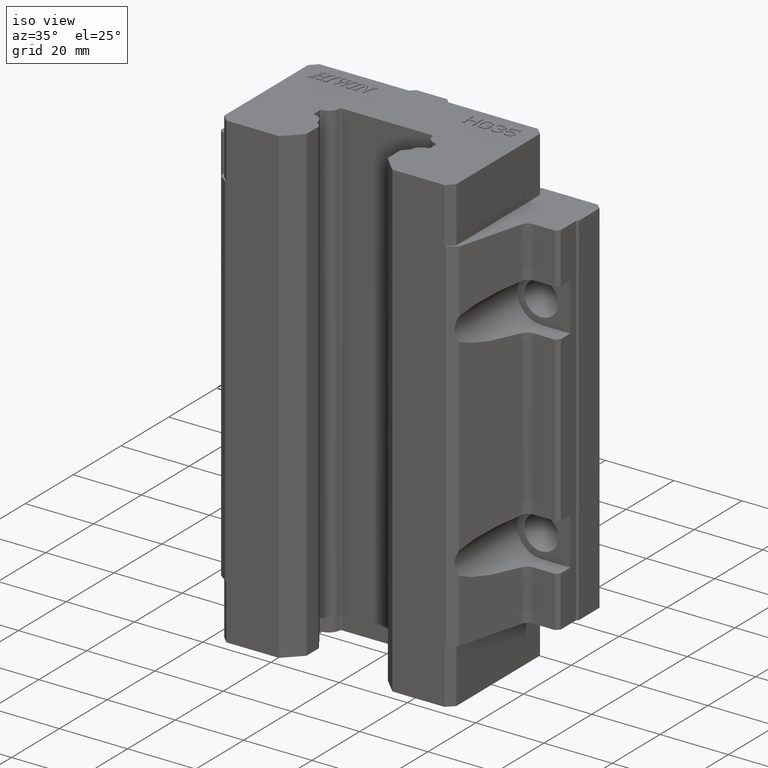
[diagram: clean part render]
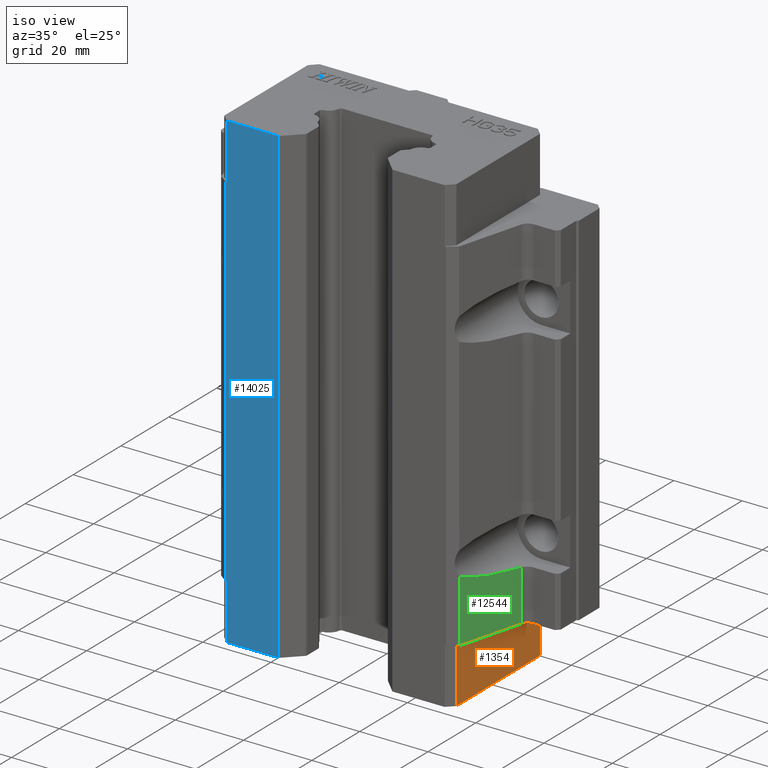
[diagram: same view with three faces highlighted in distinct colors, each labeled with its STEP entity id]
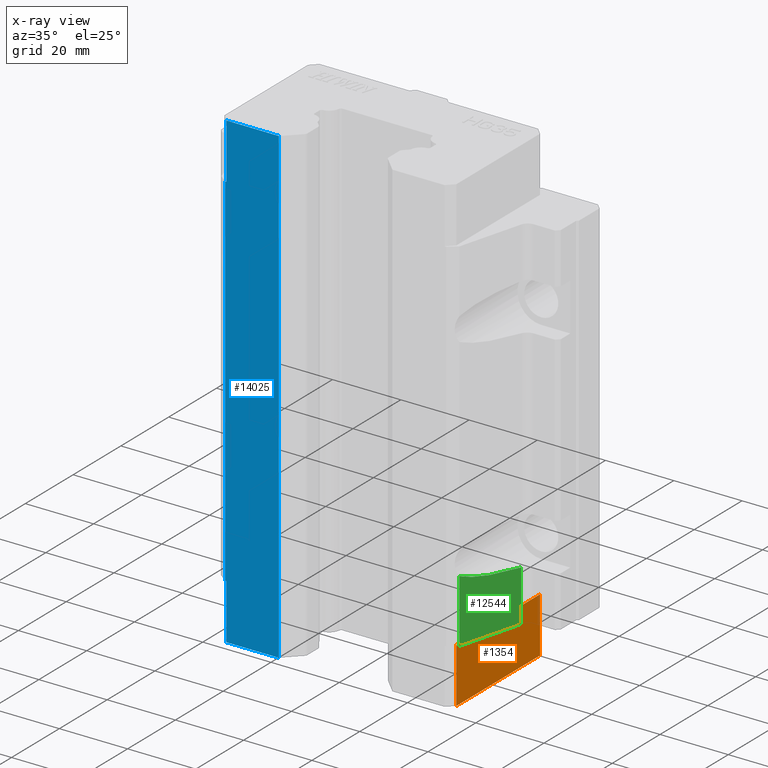
[diagram: x-ray of the same camera — body ghosted, the three highlighted faces saturated]
A machine part, iso view with three faces highlighted in distinct colors.
The next image is the same camera in x-ray (body ghosted, the three faces saturated) — at least one of them is partly hidden behind the body in this view.
Their STEP definitions:

[orange] entity #1354 — the highlighted planar face has unit normal (-1, 0, 0).
#696 = VERTEX_POINT ( 'NONE', #13085 ) ;
#711 = VERTEX_POINT ( 'NONE', #13162 ) ;
#720 = EDGE_CURVE ( 'NONE', #711, #696, #13128, .T. ) ;
#1345 = VERTEX_POINT ( 'NONE', #5882 ) ;
#1348 = VERTEX_POINT ( 'NONE', #5877 ) ;
#1350 = EDGE_LOOP ( 'NONE', ( #1359, #14055, #14050, #14041 ) ) ;
#1353 = EDGE_CURVE ( 'NONE', #1348, #711, #5874, .T. ) ;
#1354 = ADVANCED_FACE ( 'NONE', ( #5870 ), #5868, .F. ) ;
#1359 = ORIENTED_EDGE ( 'NONE', *, *, #1361, .T. ) ;
#1361 = EDGE_CURVE ( 'NONE', #1348, #1345, #5923, .T. ) ;
#3716 = LINE ( 'NONE', #3782, #3781 ) ;
#3780 = DIRECTION ( 'NONE',  ( 0.0000000000000000000, 0.0000000000000000000, 1.000000000000000000 ) ) ;
#3781 = VECTOR ( 'NONE', #3780, 1000.000000000000000 ) ;
#3782 = CARTESIAN_POINT ( 'NONE',  ( 33.95352013277000200, 15.54575714773000100, -52.90000000000000600 ) ) ;
#5864 = DIRECTION ( 'NONE',  ( 0.0000000000000000000, 0.0000000000000000000, 1.000000000000000000 ) ) ;
#5865 = DIRECTION ( 'NONE',  ( -1.000000000000000000, 0.0000000000000000000, 0.0000000000000000000 ) ) ;
#5866 = CARTESIAN_POINT ( 'NONE',  ( 33.95352013277000200, -19.45424285227000300, -52.90000000000000600 ) ) ;
#5867 = AXIS2_PLACEMENT_3D ( 'NONE', #5866, #5865, #5864 ) ;
#5868 = PLANE ( 'NONE',  #5867 ) ;
#5870 = FACE_OUTER_BOUND ( 'NONE', #1350, .T. ) ;
#5871 = DIRECTION ( 'NONE',  ( 0.0000000000000000000, 0.0000000000000000000, 1.000000000000000000 ) ) ;
#5872 = VECTOR ( 'NONE', #5871, 1000.000000000000000 ) ;
#5873 = CARTESIAN_POINT ( 'NONE',  ( 33.95352013277000200, -19.45424285227000300, -52.90000000000000600 ) ) ;
#5874 = LINE ( 'NONE', #5873, #5872 ) ;
#5877 = CARTESIAN_POINT ( 'NONE',  ( 33.95352013277000200, -19.45424285227000300, -69.09999999999999400 ) ) ;
#5882 = CARTESIAN_POINT ( 'NONE',  ( 33.95352013277000200, 15.54575714773000300, -69.09999999999999400 ) ) ;
#5920 = DIRECTION ( 'NONE',  ( 0.0000000000000000000, 1.000000000000000000, 0.0000000000000000000 ) ) ;
#5921 = VECTOR ( 'NONE', #5920, 1000.000000000000000 ) ;
#5922 = CARTESIAN_POINT ( 'NONE',  ( 33.95352013277000200, 0.0000000000000000000, -69.09999999999999400 ) ) ;
#5923 = LINE ( 'NONE', #5922, #5921 ) ;
#13085 = CARTESIAN_POINT ( 'NONE',  ( 33.95352013277000200, 15.54575714773000300, -52.90000000000000600 ) ) ;
#13125 = DIRECTION ( 'NONE',  ( 0.0000000000000000000, 1.000000000000000000, 0.0000000000000000000 ) ) ;
#13126 = VECTOR ( 'NONE', #13125, 1000.000000000000000 ) ;
#13127 = CARTESIAN_POINT ( 'NONE',  ( 33.95352013277000200, -19.45424285227000300, -52.90000000000000600 ) ) ;
#13128 = LINE ( 'NONE', #13127, #13126 ) ;
#13162 = CARTESIAN_POINT ( 'NONE',  ( 33.95352013277000200, -19.45424285227000300, -52.90000000000000600 ) ) ;
#14041 = ORIENTED_EDGE ( 'NONE', *, *, #1353, .F. ) ;
#14050 = ORIENTED_EDGE ( 'NONE', *, *, #720, .F. ) ;
#14055 = ORIENTED_EDGE ( 'NONE', *, *, #14056, .T. ) ;
#14056 = EDGE_CURVE ( 'NONE', #1345, #696, #3716, .T. ) ;

[blue] entity #14025 — the highlighted planar face has unit normal (0, -1, 0).
#726 = EDGE_CURVE ( 'NONE', #2308, #733, #13209, .T. ) ;
#733 = VERTEX_POINT ( 'NONE', #13181 ) ;
#2308 = VERTEX_POINT ( 'NONE', #6791 ) ;
#2333 = EDGE_CURVE ( 'NONE', #5430, #2308, #6783, .T. ) ;
#3619 = DIRECTION ( 'NONE',  ( 0.0000000000000000000, 0.0000000000000000000, -1.000000000000000000 ) ) ;
#3620 = VECTOR ( 'NONE', #3619, 1000.000000000000000 ) ;
#3621 = CARTESIAN_POINT ( 'NONE',  ( -32.00072271949999700, -21.50000000000000000, -52.90000000000000600 ) ) ;
#3622 = LINE ( 'NONE', #3621, #3620 ) ;
#3648 = CARTESIAN_POINT ( 'NONE',  ( -16.64140162820000100, -21.50000000000000000, -69.09999999999999400 ) ) ;
#3649 = CARTESIAN_POINT ( 'NONE',  ( -16.64140162820000400, -21.50000000000000000, 69.09999999999999400 ) ) ;
#3650 = DIRECTION ( 'NONE',  ( 1.000000000000000000, 0.0000000000000000000, 0.0000000000000000000 ) ) ;
#3651 = VECTOR ( 'NONE', #3650, 1000.000000000000000 ) ;
#3652 = CARTESIAN_POINT ( 'NONE',  ( 0.0000000000000000000, -21.50000000000000000, 69.09999999999999400 ) ) ;
#3653 = LINE ( 'NONE', #3652, #3651 ) ;
#3679 = CARTESIAN_POINT ( 'NONE',  ( -32.00072271949999700, -21.50000000000000000, -69.09999999999999400 ) ) ;
#3689 = DIRECTION ( 'NONE',  ( 1.000000000000000000, 0.0000000000000000000, 0.0000000000000000000 ) ) ;
#3690 = VECTOR ( 'NONE', #3689, 1000.000000000000000 ) ;
#3691 = CARTESIAN_POINT ( 'NONE',  ( 0.0000000000000000000, -21.50000000000000000, -69.09999999999999400 ) ) ;
#3692 = LINE ( 'NONE', #3691, #3690 ) ;
#3693 = DIRECTION ( 'NONE',  ( 0.0000000000000000000, 0.0000000000000000000, -1.000000000000000000 ) ) ;
#3694 = DIRECTION ( 'NONE',  ( 0.0000000000000000000, -1.000000000000000000, 0.0000000000000000000 ) ) ;
#3695 = CARTESIAN_POINT ( 'NONE',  ( -32.36602540155000400, -21.50000000000000000, -52.90000000000000600 ) ) ;
#3696 = AXIS2_PLACEMENT_3D ( 'NONE', #3695, #3694, #3693 ) ;
#3697 = PLANE ( 'NONE',  #3696 ) ;
#3699 = FACE_OUTER_BOUND ( 'NONE', #14029, .T. ) ;
#3707 = DIRECTION ( 'NONE',  ( 0.0000000000000000000, 0.0000000000000000000, -1.000000000000000000 ) ) ;
#3708 = VECTOR ( 'NONE', #3707, 1000.000000000000000 ) ;
#3709 = CARTESIAN_POINT ( 'NONE',  ( -16.64140162820000400, -21.50000000000000000, -52.90000000000000600 ) ) ;
#3710 = LINE ( 'NONE', #3709, #3708 ) ;
#4207 = CARTESIAN_POINT ( 'NONE',  ( -32.00072271949999700, -21.50000000000000000, 69.09999999999999400 ) ) ;
#4250 = DIRECTION ( 'NONE',  ( 0.0000000000000000000, 0.0000000000000000000, -1.000000000000000000 ) ) ;
#4251 = VECTOR ( 'NONE', #4250, 1000.000000000000000 ) ;
#4252 = CARTESIAN_POINT ( 'NONE',  ( -32.00072271949999700, -21.50000000000000000, -52.90000000000000600 ) ) ;
#4253 = LINE ( 'NONE', #4252, #4251 ) ;
#5430 = VERTEX_POINT ( 'NONE', #7808 ) ;
#5439 = VERTEX_POINT ( 'NONE', #7805 ) ;
#6780 = DIRECTION ( 'NONE',  ( 0.0000000000000000000, 0.0000000000000000000, -1.000000000000000000 ) ) ;
#6781 = VECTOR ( 'NONE', #6780, 1000.000000000000000 ) ;
#6782 = CARTESIAN_POINT ( 'NONE',  ( -32.36602540155000400, -21.50000000000000000, -52.90000000000000600 ) ) ;
#6783 = LINE ( 'NONE', #6782, #6781 ) ;
#6791 = CARTESIAN_POINT ( 'NONE',  ( -32.36602540154999700, -21.50000000000000000, -52.90000000000000600 ) ) ;
#7805 = CARTESIAN_POINT ( 'NONE',  ( -32.00072271949999700, -21.50000000000000400, 52.90000000000000600 ) ) ;
#7808 = CARTESIAN_POINT ( 'NONE',  ( -32.36602540155031700, -21.50000000000041200, 52.90000000000000600 ) ) ;
#9227 = DIRECTION ( 'NONE',  ( 1.000000000000000000, 0.0000000000000000000, 0.0000000000000000000 ) ) ;
#9228 = VECTOR ( 'NONE', #9227, 1000.000000000000000 ) ;
#9229 = CARTESIAN_POINT ( 'NONE',  ( 0.0000000000000000000, -21.50000000000000000, 52.90000000000000600 ) ) ;
#9230 = LINE ( 'NONE', #9229, #9228 ) ;
#10379 = EDGE_CURVE ( 'NONE', #5430, #5439, #9230, .T. ) ;
#13181 = CARTESIAN_POINT ( 'NONE',  ( -32.00072271949999700, -21.50000000000000400, -52.90000000000000600 ) ) ;
#13206 = DIRECTION ( 'NONE',  ( 1.000000000000000000, 0.0000000000000000000, 0.0000000000000000000 ) ) ;
#13207 = VECTOR ( 'NONE', #13206, 1000.000000000000000 ) ;
#13208 = CARTESIAN_POINT ( 'NONE',  ( -32.36602540155000400, -21.50000000000000000, -52.90000000000000600 ) ) ;
#13209 = LINE ( 'NONE', #13208, #13207 ) ;
#13990 = EDGE_CURVE ( 'NONE', #733, #13995, #3622, .T. ) ;
#13995 = VERTEX_POINT ( 'NONE', #3679 ) ;
#14008 = ORIENTED_EDGE ( 'NONE', *, *, #13990, .T. ) ;
#14009 = ORIENTED_EDGE ( 'NONE', *, *, #2333, .T. ) ;
#14010 = ORIENTED_EDGE ( 'NONE', *, *, #726, .T. ) ;
#14014 = EDGE_CURVE ( 'NONE', #14424, #14017, #3653, .T. ) ;
#14015 = ORIENTED_EDGE ( 'NONE', *, *, #14022, .F. ) ;
#14016 = ORIENTED_EDGE ( 'NONE', *, *, #10379, .F. ) ;
#14017 = VERTEX_POINT ( 'NONE', #3649 ) ;
#14018 = VERTEX_POINT ( 'NONE', #3648 ) ;
#14019 = ORIENTED_EDGE ( 'NONE', *, *, #14014, .F. ) ;
#14020 = ORIENTED_EDGE ( 'NONE', *, *, #14431, .T. ) ;
#14022 = EDGE_CURVE ( 'NONE', #14017, #14018, #3710, .T. ) ;
#14025 = ADVANCED_FACE ( 'NONE', ( #3699 ), #3697, .T. ) ;
#14027 = EDGE_CURVE ( 'NONE', #13995, #14018, #3692, .T. ) ;
#14029 = EDGE_LOOP ( 'NONE', ( #14030, #14015, #14019, #14020, #14016, #14009, #14010, #14008 ) ) ;
#14030 = ORIENTED_EDGE ( 'NONE', *, *, #14027, .T. ) ;
#14424 = VERTEX_POINT ( 'NONE', #4207 ) ;
#14431 = EDGE_CURVE ( 'NONE', #14424, #5439, #4253, .T. ) ;

[green] entity #12544 — the highlighted planar face has unit normal (0.9659, -0.2588, 0).
#2607 = CARTESIAN_POINT ( 'NONE',  ( 34.88366349621986700, -19.56814834741814800, -34.40447173178549900 ) ) ;
#2643 = CARTESIAN_POINT ( 'NONE',  ( 39.89838513993823500, -0.8529523872430634400, -37.91277402350882400 ) ) ;
#2859 = CARTESIAN_POINT ( 'NONE',  ( 34.88366349621968300, -19.56814834741958700, -52.90000000000000600 ) ) ;
#2885 = CARTESIAN_POINT ( 'NONE',  ( 34.88366349621986700, -19.56814834741814800, -34.40447173178549900 ) ) ;
#2886 = CARTESIAN_POINT ( 'NONE',  ( 35.94717413871188000, -15.59907259524963600, -36.31513202721421900 ) ) ;
#2887 = CARTESIAN_POINT ( 'NONE',  ( 37.73892860091051200, -8.912153907635332200, -37.56864453150426200 ) ) ;
#2888 = CARTESIAN_POINT ( 'NONE',  ( 39.89838513993823500, -0.8529523872430634400, -37.91277402350882400 ) ) ;
#2889 =( BOUNDED_CURVE ( )  B_SPLINE_CURVE ( 3, ( #2888, #2887, #2886, #2885 ),
 .UNSPECIFIED., .F., .T. ) 
 B_SPLINE_CURVE_WITH_KNOTS ( ( 4, 4 ),
 ( 4.870419477035605700, 5.775274210137818700 ),
 .UNSPECIFIED. ) 
 CURVE ( )  GEOMETRIC_REPRESENTATION_ITEM ( )  RATIONAL_B_SPLINE_CURVE ( ( 1.000000000000000000, 0.9329257532243150400, 0.9329257532243150400, 1.000000000000000000 ) ) 
 REPRESENTATION_ITEM ( '' )  );
#2932 = DIRECTION ( 'NONE',  ( 0.0000000000000000000, 0.0000000000000000000, 1.000000000000000000 ) ) ;
#2933 = VECTOR ( 'NONE', #2932, 1000.000000000000000 ) ;
#2934 = CARTESIAN_POINT ( 'NONE',  ( 39.89838513993758100, -0.8529523872427515800, -52.90000000000000600 ) ) ;
#2935 = LINE ( 'NONE', #2934, #2933 ) ;
#2948 = CARTESIAN_POINT ( 'NONE',  ( 39.89838513993867500, -0.8529523872435208500, -52.90000000000000600 ) ) ;
#2949 = DIRECTION ( 'NONE',  ( 0.2588190451025430500, 0.9659258262890622100, 0.0000000000000000000 ) ) ;
#2950 = VECTOR ( 'NONE', #2949, 1000.000000000000100 ) ;
#2951 = CARTESIAN_POINT ( 'NONE',  ( 34.88366349622000200, -19.56814834741999900, -52.90000000000000600 ) ) ;
#2952 = LINE ( 'NONE', #2951, #2950 ) ;
#2953 = DIRECTION ( 'NONE',  ( 0.0000000000000000000, 0.0000000000000000000, 1.000000000000000000 ) ) ;
#2954 = VECTOR ( 'NONE', #2953, 1000.000000000000000 ) ;
#2955 = CARTESIAN_POINT ( 'NONE',  ( 34.88366349621906400, -19.56814834741876300, -52.90000000000000600 ) ) ;
#2956 = LINE ( 'NONE', #2955, #2954 ) ;
#2960 = DIRECTION ( 'NONE',  ( 0.2588190451024934300, 0.9659258262890755300, 0.0000000000000000000 ) ) ;
#2961 = DIRECTION ( 'NONE',  ( 0.9659258262890756400, -0.2588190451024934800, 0.0000000000000000000 ) ) ;
#2962 = CARTESIAN_POINT ( 'NONE',  ( 34.88366349622000200, -19.56814834741999900, -52.90000000000000600 ) ) ;
#2963 = AXIS2_PLACEMENT_3D ( 'NONE', #2962, #2961, #2960 ) ;
#2964 = PLANE ( 'NONE',  #2963 ) ;
#2966 = FACE_OUTER_BOUND ( 'NONE', #12491, .T. ) ;
#12393 = VERTEX_POINT ( 'NONE', #2607 ) ;
#12399 = VERTEX_POINT ( 'NONE', #2643 ) ;
#12491 = EDGE_LOOP ( 'NONE', ( #12545, #12547, #12549, #12561 ) ) ;
#12507 = VERTEX_POINT ( 'NONE', #2859 ) ;
#12515 = EDGE_CURVE ( 'NONE', #12399, #12393, #2889, .T. ) ;
#12544 = ADVANCED_FACE ( 'NONE', ( #2966 ), #2964, .T. ) ;
#12545 = ORIENTED_EDGE ( 'NONE', *, *, #12515, .T. ) ;
#12547 = ORIENTED_EDGE ( 'NONE', *, *, #12548, .F. ) ;
#12548 = EDGE_CURVE ( 'NONE', #12507, #12393, #2956, .T. ) ;
#12549 = ORIENTED_EDGE ( 'NONE', *, *, #12550, .T. ) ;
#12550 = EDGE_CURVE ( 'NONE', #12507, #12551, #2952, .T. ) ;
#12551 = VERTEX_POINT ( 'NONE', #2948 ) ;
#12561 = ORIENTED_EDGE ( 'NONE', *, *, #12562, .T. ) ;
#12562 = EDGE_CURVE ( 'NONE', #12551, #12399, #2935, .T. ) ;